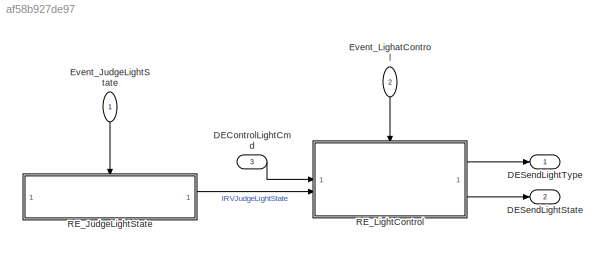
MODEL slx_af58b927de97
KIND model
CONFIG AbsTol = auto
CONFIG EnableMultiTasking = off
CONFIG FixedStep = 0.001
CONFIG MaxStep = auto
CONFIG MinStep = auto
CONFIG RelTol = 1e-3
CONFIG SampleTimeConstraint = Unconstrained
CONFIG SolverName = FixedStepDiscrete
CONFIG StartTime = 0.0
CONFIG StopTime = 10.0
BLOCK [Inport] DEControlLightCmd
  Port = 3
BLOCK [Outport] DESendLightState
  Port = 2
BLOCK [Outport] DESendLightType
BLOCK [Inport] Event_JudgeLightState
  NameLocation = left
  OutputFunctionCall = on
  SampleTime = 0.02
BLOCK [Inport] Event_LighatControl
  NameLocation = left
  OutputFunctionCall = on
  Port = 2
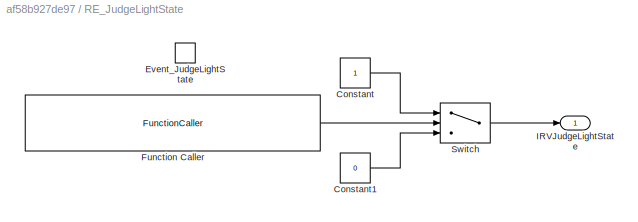
BLOCK [SubSystem] RE_JudgeLightState
  TreatAsAtomicUnit = on
BLOCK [Constant] RE_JudgeLightState/Constant
BLOCK [Constant] RE_JudgeLightState/Constant1
  Value = 0
BLOCK [TriggerPort] RE_JudgeLightState/Event_JudgeLightState
  StatesWhenEnabling = held
  TriggerType = function-call
  VariantControl = (inherit)
BLOCK [FunctionCaller] RE_JudgeLightState/Function Caller
  FunctionPrototype = DEGetLightState = OPGetLightState()
  InputArgumentSpecifications = <Enter example>
  OutputArgumentSpecifications = uint8(1)
BLOCK [Outport] RE_JudgeLightState/IRVJudgeLightState
  OutDataTypeStr = int8
BLOCK [Switch] RE_JudgeLightState/Switch
  Criteria = u2 > Threshold
  InputSameDT = off
  OutDataTypeStr = int8
  SaturateOnIntegerOverflow = off
  Threshold = 4
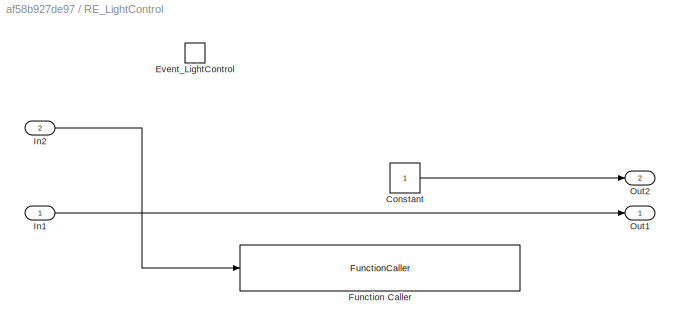
BLOCK [SubSystem] RE_LightControl
  TreatAsAtomicUnit = on
BLOCK [Constant] RE_LightControl/Constant
BLOCK [TriggerPort] RE_LightControl/Event_LightControl
  StatesWhenEnabling = held
  TriggerType = function-call
  VariantControl = (inherit)
BLOCK [FunctionCaller] RE_LightControl/Function Caller
  FunctionPrototype = OPSetLightState(DESetLightState)
  InputArgumentSpecifications = int8(1)
  OutputArgumentSpecifications = <Enter example>
BLOCK [Inport] RE_LightControl/In1
BLOCK [Inport] RE_LightControl/In2
  Port = 2
BLOCK [Outport] RE_LightControl/Out1
BLOCK [Outport] RE_LightControl/Out2
  Port = 2
LINE DEControlLightCmd:1 -> RE_LightControl:1
LINE Event_JudgeLightState:1 -> RE_JudgeLightState:trigger
LINE Event_LighatControl:1 -> RE_LightControl:trigger
LINE RE_JudgeLightState/Constant1:1 -> RE_JudgeLightState/Switch:3
LINE RE_JudgeLightState/Constant:1 -> RE_JudgeLightState/Switch:1
LINE RE_JudgeLightState/Function Caller:1 -> RE_JudgeLightState/Switch:2
LINE RE_JudgeLightState/Switch:1 -> RE_JudgeLightState/IRVJudgeLightState:1
LINE RE_JudgeLightState:1 -> RE_LightControl:2
LINE RE_LightControl/Constant:1 -> RE_LightControl/Out2:1
LINE RE_LightControl/In1:1 -> RE_LightControl/Out1:1
LINE RE_LightControl/In2:1 -> RE_LightControl/Function Caller:1
LINE RE_LightControl:1 -> DESendLightType:1
LINE RE_LightControl:2 -> DESendLightState:1
